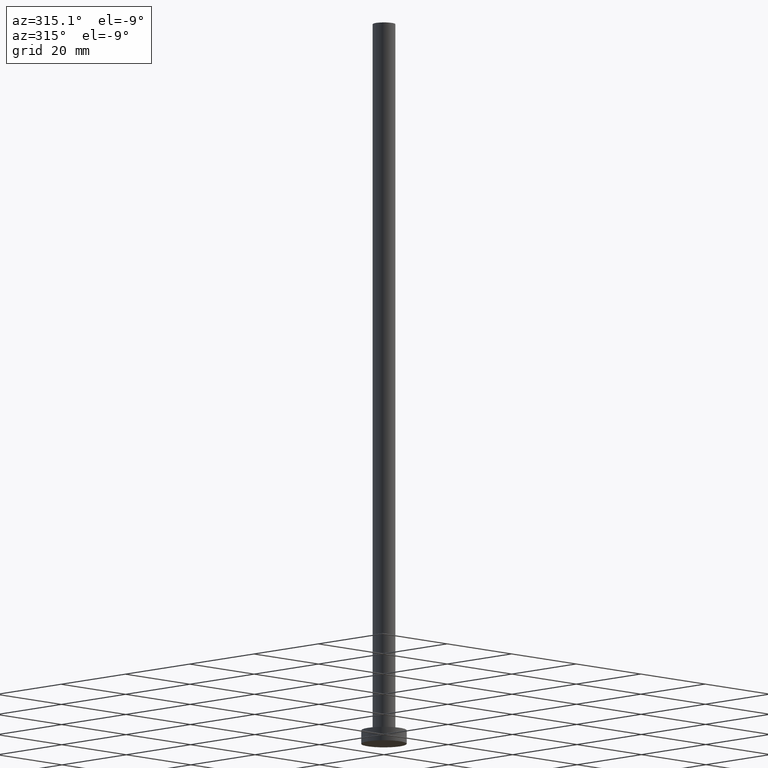
[diagram: clean part render]
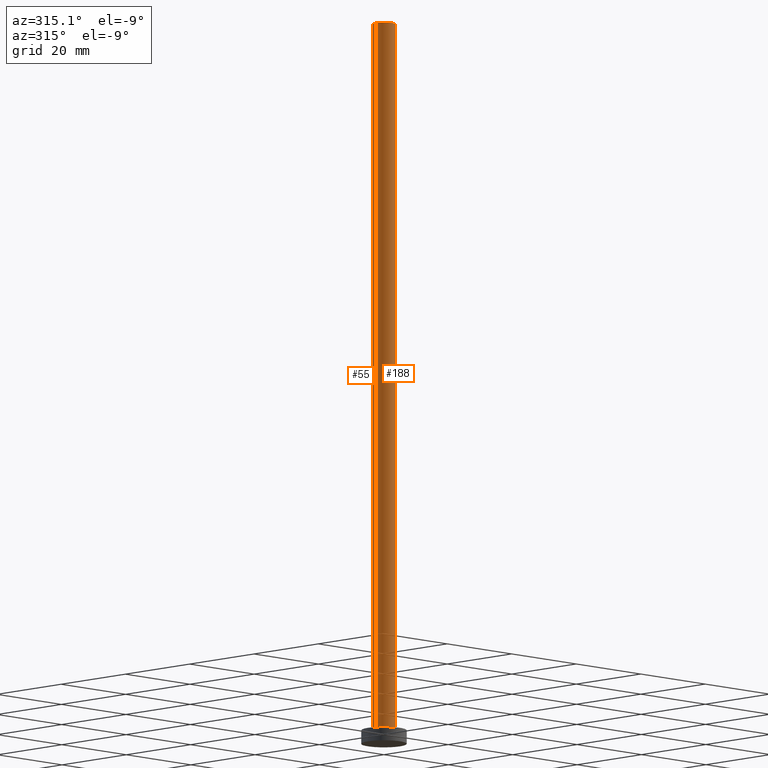
[diagram: same view with one multi-face feature highlighted, each face labeled with its STEP entity id]
A machine part, auxiliary view. The highlighted faces form ONE feature: a constant-radius fillet chain: 2 tangent blend faces with common blend radius 2.5 mm. The faces share edges in the B-rep.
Their STEP definitions:
[1] entity #55 (Cylinder):
#4 = ORIENTED_EDGE ( 'NONE', *, *, #150, .T. ) ;
#5 = AXIS2_PLACEMENT_3D ( 'NONE', #60, #215, #173 ) ;
#16 = CARTESIAN_POINT ( 'NONE',  ( 0.000000000000000000, 0.000000000000000000, 160.0000000000000000 ) ) ;
#17 = EDGE_CURVE ( 'NONE', #139, #43, #86, .T. ) ;
#19 = CARTESIAN_POINT ( 'NONE',  ( -2.500000000000000000, 0.000000000000000000, 3.000000000000000000 ) ) ;
#24 = VERTEX_POINT ( 'NONE', #108 ) ;
#28 = AXIS2_PLACEMENT_3D ( 'NONE', #16, #250, #76 ) ;
#33 = ORIENTED_EDGE ( 'NONE', *, *, #59, .F. ) ;
#38 = CARTESIAN_POINT ( 'NONE',  ( 2.500000000000000000, 3.061616997868383141E-16, 160.0000000000000000 ) ) ;
#43 = VERTEX_POINT ( 'NONE', #211 ) ;
#55 = ADVANCED_FACE ( 'NONE', ( #74 ), #192, .T. ) ;
#56 = DIRECTION ( 'NONE',  ( -0.000000000000000000, -0.000000000000000000, -1.000000000000000000 ) ) ;
#59 = EDGE_CURVE ( 'NONE', #43, #104, #151, .T. ) ;
#60 = CARTESIAN_POINT ( 'NONE',  ( 0.000000000000000000, 0.000000000000000000, 3.000000000000000000 ) ) ;
#62 = CIRCLE ( 'NONE', #5, 2.500000000000000000 ) ;
#74 = FACE_OUTER_BOUND ( 'NONE', #105, .T. ) ;
#76 = DIRECTION ( 'NONE',  ( -1.000000000000000000, 0.000000000000000000, 0.000000000000000000 ) ) ;
#86 = CIRCLE ( 'NONE', #102, 2.500000000000000000 ) ;
#102 = AXIS2_PLACEMENT_3D ( 'NONE', #175, #131, #167 ) ;
#104 = VERTEX_POINT ( 'NONE', #19 ) ;
#105 = EDGE_LOOP ( 'NONE', ( #121, #4, #198, #33 ) ) ;
#108 = CARTESIAN_POINT ( 'NONE',  ( 2.500000000000000000, 3.061616997868383141E-16, 3.000000000000000000 ) ) ;
#116 = VECTOR ( 'NONE', #217, 1000.000000000000000 ) ;
#121 = ORIENTED_EDGE ( 'NONE', *, *, #17, .F. ) ;
#125 = EDGE_CURVE ( 'NONE', #24, #104, #62, .T. ) ;
#131 = DIRECTION ( 'NONE',  ( 0.000000000000000000, 0.000000000000000000, 1.000000000000000000 ) ) ;
#139 = VERTEX_POINT ( 'NONE', #38 ) ;
#150 = EDGE_CURVE ( 'NONE', #139, #24, #213, .T. ) ;
#151 = LINE ( 'NONE', #230, #203 ) ;
#167 = DIRECTION ( 'NONE',  ( 1.000000000000000000, 0.000000000000000000, 0.000000000000000000 ) ) ;
#173 = DIRECTION ( 'NONE',  ( 1.000000000000000000, 0.000000000000000000, 0.000000000000000000 ) ) ;
#175 = CARTESIAN_POINT ( 'NONE',  ( 0.000000000000000000, 0.000000000000000000, 160.0000000000000000 ) ) ;
#190 = CARTESIAN_POINT ( 'NONE',  ( 2.500000000000000000, 3.061616997868383141E-16, 160.0000000000000000 ) ) ;
#192 = CYLINDRICAL_SURFACE ( 'NONE', #28, 2.500000000000000000 ) ;
#198 = ORIENTED_EDGE ( 'NONE', *, *, #125, .T. ) ;
#203 = VECTOR ( 'NONE', #56, 1000.000000000000000 ) ;
#211 = CARTESIAN_POINT ( 'NONE',  ( -2.500000000000000000, 0.000000000000000000, 160.0000000000000000 ) ) ;
#213 = LINE ( 'NONE', #190, #116 ) ;
#215 = DIRECTION ( 'NONE',  ( 0.000000000000000000, 0.000000000000000000, 1.000000000000000000 ) ) ;
#217 = DIRECTION ( 'NONE',  ( -0.000000000000000000, -0.000000000000000000, -1.000000000000000000 ) ) ;
#230 = CARTESIAN_POINT ( 'NONE',  ( -2.500000000000000000, 0.000000000000000000, 160.0000000000000000 ) ) ;
#250 = DIRECTION ( 'NONE',  ( -0.000000000000000000, -0.000000000000000000, -1.000000000000000000 ) ) ;
[2] entity #188 (Cylinder):
#3 = DIRECTION ( 'NONE',  ( 1.000000000000000000, 0.000000000000000000, 0.000000000000000000 ) ) ;
#14 = CARTESIAN_POINT ( 'NONE',  ( 0.000000000000000000, 0.000000000000000000, 160.0000000000000000 ) ) ;
#19 = CARTESIAN_POINT ( 'NONE',  ( -2.500000000000000000, 0.000000000000000000, 3.000000000000000000 ) ) ;
#24 = VERTEX_POINT ( 'NONE', #108 ) ;
#30 = CIRCLE ( 'NONE', #147, 2.500000000000000000 ) ;
#38 = CARTESIAN_POINT ( 'NONE',  ( 2.500000000000000000, 3.061616997868383141E-16, 160.0000000000000000 ) ) ;
#40 = DIRECTION ( 'NONE',  ( -1.000000000000000000, 0.000000000000000000, 0.000000000000000000 ) ) ;
#42 = CARTESIAN_POINT ( 'NONE',  ( 0.000000000000000000, 0.000000000000000000, 160.0000000000000000 ) ) ;
#43 = VERTEX_POINT ( 'NONE', #211 ) ;
#56 = DIRECTION ( 'NONE',  ( -0.000000000000000000, -0.000000000000000000, -1.000000000000000000 ) ) ;
#59 = EDGE_CURVE ( 'NONE', #43, #104, #151, .T. ) ;
#61 = DIRECTION ( 'NONE',  ( -0.000000000000000000, -0.000000000000000000, -1.000000000000000000 ) ) ;
#82 = DIRECTION ( 'NONE',  ( 0.000000000000000000, 0.000000000000000000, 1.000000000000000000 ) ) ;
#83 = DIRECTION ( 'NONE',  ( 0.000000000000000000, 0.000000000000000000, 1.000000000000000000 ) ) ;
#104 = VERTEX_POINT ( 'NONE', #19 ) ;
#108 = CARTESIAN_POINT ( 'NONE',  ( 2.500000000000000000, 3.061616997868383141E-16, 3.000000000000000000 ) ) ;
#116 = VECTOR ( 'NONE', #217, 1000.000000000000000 ) ;
#117 = EDGE_CURVE ( 'NONE', #104, #24, #248, .T. ) ;
#124 = EDGE_CURVE ( 'NONE', #43, #139, #30, .T. ) ;
#138 = ORIENTED_EDGE ( 'NONE', *, *, #124, .F. ) ;
#139 = VERTEX_POINT ( 'NONE', #38 ) ;
#140 = AXIS2_PLACEMENT_3D ( 'NONE', #251, #82, #3 ) ;
#144 = AXIS2_PLACEMENT_3D ( 'NONE', #42, #61, #40 ) ;
#147 = AXIS2_PLACEMENT_3D ( 'NONE', #14, #83, #155 ) ;
#149 = CYLINDRICAL_SURFACE ( 'NONE', #144, 2.500000000000000000 ) ;
#150 = EDGE_CURVE ( 'NONE', #139, #24, #213, .T. ) ;
#151 = LINE ( 'NONE', #230, #203 ) ;
#155 = DIRECTION ( 'NONE',  ( 1.000000000000000000, 0.000000000000000000, 0.000000000000000000 ) ) ;
#187 = ORIENTED_EDGE ( 'NONE', *, *, #59, .T. ) ;
#188 = ADVANCED_FACE ( 'NONE', ( #218 ), #149, .T. ) ;
#190 = CARTESIAN_POINT ( 'NONE',  ( 2.500000000000000000, 3.061616997868383141E-16, 160.0000000000000000 ) ) ;
#203 = VECTOR ( 'NONE', #56, 1000.000000000000000 ) ;
#207 = EDGE_LOOP ( 'NONE', ( #219, #138, #187, #252 ) ) ;
#211 = CARTESIAN_POINT ( 'NONE',  ( -2.500000000000000000, 0.000000000000000000, 160.0000000000000000 ) ) ;
#213 = LINE ( 'NONE', #190, #116 ) ;
#217 = DIRECTION ( 'NONE',  ( -0.000000000000000000, -0.000000000000000000, -1.000000000000000000 ) ) ;
#218 = FACE_OUTER_BOUND ( 'NONE', #207, .T. ) ;
#219 = ORIENTED_EDGE ( 'NONE', *, *, #150, .F. ) ;
#230 = CARTESIAN_POINT ( 'NONE',  ( -2.500000000000000000, 0.000000000000000000, 160.0000000000000000 ) ) ;
#248 = CIRCLE ( 'NONE', #140, 2.500000000000000000 ) ;
#251 = CARTESIAN_POINT ( 'NONE',  ( 0.000000000000000000, 0.000000000000000000, 3.000000000000000000 ) ) ;
#252 = ORIENTED_EDGE ( 'NONE', *, *, #117, .T. ) ;